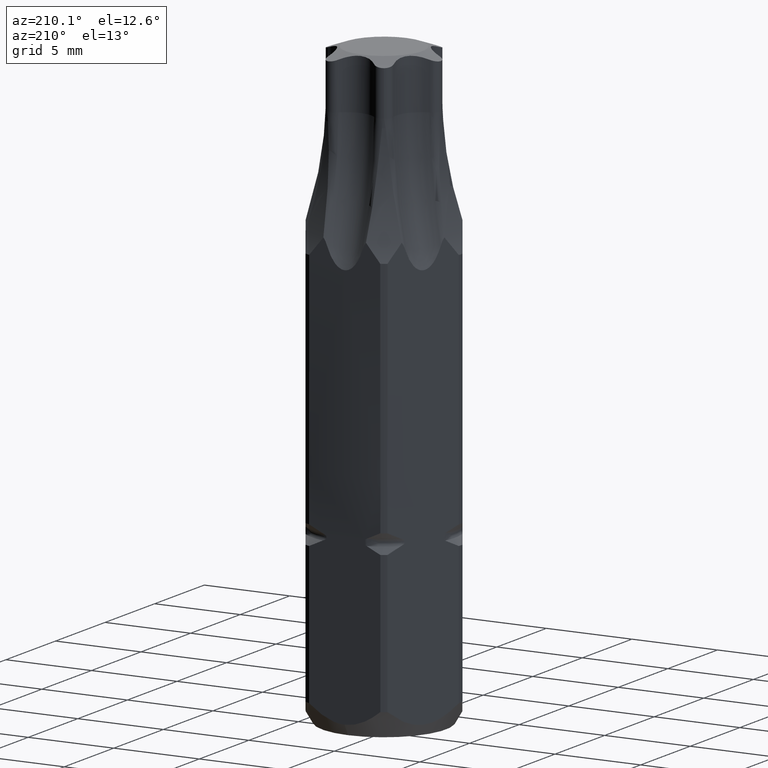
[diagram: clean part render]
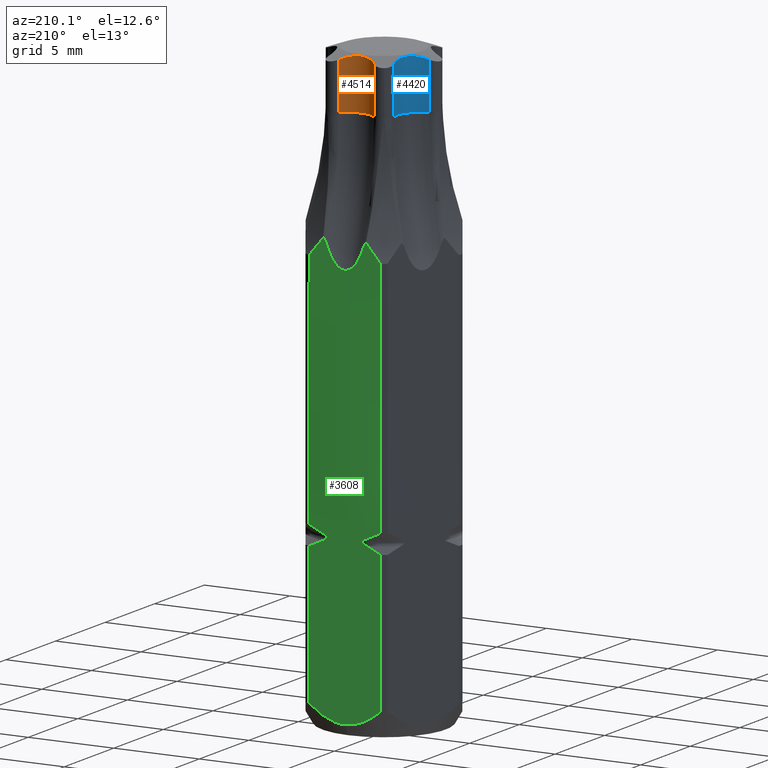
[diagram: same view with three faces highlighted in distinct colors, each labeled with its STEP entity id]
A machine part, auxiliary view with three faces highlighted in distinct colors.
Their STEP definitions:

[orange] entity #4514 — the highlighted cylindrical surface (edge-blend (fillet) strip) has radius 1.47 mm, axis along (0, 0, -1).
#2431=DIRECTION('',(0.E0,0.E0,-1.E0));
#2432=VECTOR('',#2431,2.730601962634E0);
#2433=CARTESIAN_POINT('',(-1.042838034832E0,2.798955197345E0,3.473060196263E1));
#2434=LINE('',#2433,#2432);
#2474=CARTESIAN_POINT('',(0.E0,3.835E0,3.2E1));
#2475=DIRECTION('',(0.E0,0.E0,-1.E0));
#2476=DIRECTION('',(7.094136291372E-1,-7.047923827585E-1,0.E0));
#2477=AXIS2_PLACEMENT_3D('',#2474,#2475,#2476);
#2526=CARTESIAN_POINT('',(1.042838034832E0,2.798955197345E0,3.473060196263E1));
#2538=CARTESIAN_POINT('',(1.042838034832E0,2.798955197345E0,3.473060196263E1));
#2539=CARTESIAN_POINT('',(9.699002866306E-1,2.725539204326E0,3.476491025058E1));
#2540=CARTESIAN_POINT('',(8.115790935390E-1,2.596961076582E0,3.482827344016E1));
#2541=CARTESIAN_POINT('',(5.461495440323E-1,2.459945298125E0,3.490200143894E1));
#2542=CARTESIAN_POINT('',(2.737208158012E-1,2.381788600741E0,3.494696765808E1));
#2543=CARTESIAN_POINT('',(9.017319638952E-2,2.365E0,3.495696051980E1));
#2544=CARTESIAN_POINT('',(0.E0,2.365E0,3.495696051980E1));
#2549=CARTESIAN_POINT('',(0.E0,2.365E0,3.495696051980E1));
#2550=CARTESIAN_POINT('',(-9.091247753343E-2,2.365E0,3.495696051980E1));
#2551=CARTESIAN_POINT('',(-2.753400528239E-1,2.382070805188E0,
3.494679864733E1));
#2552=CARTESIAN_POINT('',(-5.469459418545E-1,2.460393553623E0,
3.490176003595E1));
#2553=CARTESIAN_POINT('',(-8.106914107492E-1,2.596450595448E0,
3.482854456145E1));
#2554=CARTESIAN_POINT('',(-9.695608488727E-1,2.725197540912E0,
3.476506991452E1));
#2555=CARTESIAN_POINT('',(-1.042838034832E0,2.798955197345E0,3.473060196263E1));
#2560=DIRECTION('',(0.E0,0.E0,-1.E0));
#2561=VECTOR('',#2560,2.730601962634E0);
#2562=CARTESIAN_POINT('',(1.042838034832E0,2.798955197345E0,3.473060196263E1));
#2563=LINE('',#2562,#2561);
#2847=CARTESIAN_POINT('',(1.042838034832E0,2.798955197345E0,3.2E1));
#2848=CARTESIAN_POINT('',(-1.042838034832E0,2.798955197345E0,3.2E1));
#2849=VERTEX_POINT('',#2847);
#2850=VERTEX_POINT('',#2848);
#2919=VERTEX_POINT('',#2526);
#2921=VERTEX_POINT('',#2544);
#2922=VERTEX_POINT('',#2555);
#4502=CARTESIAN_POINT('',(0.E0,3.835E0,3.5E1));
#4503=DIRECTION('',(0.E0,0.E0,-1.E0));
#4504=DIRECTION('',(0.E0,1.E0,0.E0));
#4505=AXIS2_PLACEMENT_3D('',#4502,#4503,#4504);
#4506=CYLINDRICAL_SURFACE('',#4505,1.47E0);
#4507=ORIENTED_EDGE('',*,*,#4128,.T.);
#4508=ORIENTED_EDGE('',*,*,#4195,.T.);
#4509=ORIENTED_EDGE('',*,*,#4442,.T.);
#4510=ORIENTED_EDGE('',*,*,#4468,.F.);
#4511=ORIENTED_EDGE('',*,*,#4495,.F.);
#4512=EDGE_LOOP('',(#4507,#4508,#4509,#4510,#4511));
#4513=FACE_OUTER_BOUND('',#4512,.F.);
#4514=ADVANCED_FACE('',(#4513),#4506,.F.);
#2478=CIRCLE('',#2477,1.47E0);
#2545=B_SPLINE_CURVE_WITH_KNOTS('',3,(#2538,#2539,#2540,#2541,#2542,#2543,
#2544),.UNSPECIFIED.,.F.,.F.,(4,1,1,1,4),(0.E0,2.5E-1,5.E-1,7.5E-1,1.E0),
.UNSPECIFIED.);
#2556=B_SPLINE_CURVE_WITH_KNOTS('',3,(#2549,#2550,#2551,#2552,#2553,#2554,
#2555),.UNSPECIFIED.,.F.,.F.,(4,1,1,1,4),(0.E0,2.5E-1,5.E-1,7.5E-1,1.E0),
.UNSPECIFIED.);
#4128=EDGE_CURVE('',#2919,#2921,#2545,.T.);
#4195=EDGE_CURVE('',#2921,#2922,#2556,.T.);
#4442=EDGE_CURVE('',#2922,#2850,#2434,.T.);
#4468=EDGE_CURVE('',#2849,#2850,#2478,.T.);
#4495=EDGE_CURVE('',#2919,#2849,#2563,.T.);

[blue] entity #4420 — the highlighted cylindrical surface (edge-blend (fillet) strip) has radius 1.47 mm, axis along (0, 0, -1).
#1715=CARTESIAN_POINT('',(-3.321207423513E0,1.9175E0,3.2E1));
#1716=DIRECTION('',(0.E0,0.E0,-1.E0));
#1717=DIRECTION('',(9.650749224312E-1,2.619740332445E-1,0.E0));
#1718=AXIS2_PLACEMENT_3D('',#1715,#1716,#1717);
#2379=DIRECTION('',(0.E0,0.E0,-1.E0));
#2380=VECTOR('',#2379,2.730601962634E0);
#2381=CARTESIAN_POINT('',(-2.945385322371E0,4.963533684756E-1,
3.473060196263E1));
#2382=LINE('',#2381,#2380);
#2386=CARTESIAN_POINT('',(-1.902547287539E0,2.302601828869E0,3.473060196263E1));
#2387=CARTESIAN_POINT('',(-1.871497430800E0,2.188218591291E0,3.476989442548E1));
#2388=CARTESIAN_POINT('',(-1.838375222690E0,1.957171090817E0,3.484160660030E1));
#2389=CARTESIAN_POINT('',(-1.869136733366E0,1.619301133311E0,3.491971703679E1));
#2390=CARTESIAN_POINT('',(-1.969690484980E0,1.310705672692E0,3.495921769548E1));
#2391=CARTESIAN_POINT('',(-2.130238089734E0,1.036733641687E0,3.495798141464E1));
#2392=CARTESIAN_POINT('',(-2.345860517826E0,8.020009046130E-1,
3.491734600614E1));
#2393=CARTESIAN_POINT('',(-2.617086255884E0,6.124630018908E-1,
3.484059962333E1));
#2394=CARTESIAN_POINT('',(-2.831573701809E0,5.264508414776E-1,
3.476962966182E1));
#2395=CARTESIAN_POINT('',(-2.945385322371E0,4.963533684756E-1,
3.473060196263E1));
#2400=DIRECTION('',(0.E0,0.E0,-1.E0));
#2401=VECTOR('',#2400,2.730601962634E0);
#2402=CARTESIAN_POINT('',(-1.902547287539E0,2.302601828869E0,3.473060196263E1));
#2403=LINE('',#2402,#2401);
#2855=CARTESIAN_POINT('',(-1.902547287539E0,2.302601828869E0,3.2E1));
#2856=CARTESIAN_POINT('',(-2.945385322371E0,4.963533684756E-1,3.2E1));
#2857=VERTEX_POINT('',#2855);
#2858=VERTEX_POINT('',#2856);
#2944=VERTEX_POINT('',#2386);
#2945=VERTEX_POINT('',#2395);
#4408=CARTESIAN_POINT('',(-3.321207423513E0,1.9175E0,3.5E1));
#4409=DIRECTION('',(0.E0,0.E0,-1.E0));
#4410=DIRECTION('',(-8.660254037844E-1,5.E-1,0.E0));
#4411=AXIS2_PLACEMENT_3D('',#4408,#4409,#4410);
#4412=CYLINDRICAL_SURFACE('',#4411,1.47E0);
#4413=ORIENTED_EDGE('',*,*,#4188,.T.);
#4414=ORIENTED_EDGE('',*,*,#4403,.T.);
#4415=ORIENTED_EDGE('',*,*,#3985,.F.);
#4417=ORIENTED_EDGE('',*,*,#4416,.F.);
#4418=EDGE_LOOP('',(#4413,#4414,#4415,#4417));
#4419=FACE_OUTER_BOUND('',#4418,.F.);
#4420=ADVANCED_FACE('',(#4419),#4412,.F.);
#1719=CIRCLE('',#1718,1.47E0);
#2396=B_SPLINE_CURVE_WITH_KNOTS('',3,(#2386,#2387,#2388,#2389,#2390,#2391,#2392,
#2393,#2394,#2395),.UNSPECIFIED.,.F.,.F.,(4,1,1,1,1,1,1,4),(0.E0,
1.428571428571E-1,2.857142857143E-1,4.285714285714E-1,5.714285714286E-1,
7.142857142857E-1,8.571428571429E-1,1.E0),.UNSPECIFIED.);
#3985=EDGE_CURVE('',#2857,#2858,#1719,.T.);
#4188=EDGE_CURVE('',#2944,#2945,#2396,.T.);
#4403=EDGE_CURVE('',#2945,#2858,#2382,.T.);
#4416=EDGE_CURVE('',#2944,#2857,#2403,.T.);

[green] entity #3608 — the highlighted planar face has unit normal (0, -1, 0).
#106=CARTESIAN_POINT('',(0.E0,3.965E0,6.079938341020E-1));
#107=CARTESIAN_POINT('',(-1.260709872192E-1,3.965E0,6.079938341020E-1));
#108=CARTESIAN_POINT('',(-3.820886774728E-1,3.965E0,6.290926462320E-1));
#109=CARTESIAN_POINT('',(-7.723101852079E-1,3.965E0,7.260594150333E-1));
#110=CARTESIAN_POINT('',(-1.185045461804E0,3.965E0,8.964966185216E-1));
#111=CARTESIAN_POINT('',(-1.623404060543E0,3.965E0,1.149672226966E0));
#112=CARTESIAN_POINT('',(-1.929078592573E0,3.965E0,1.373906643791E0));
#113=CARTESIAN_POINT('',(-2.085467573471E0,3.965E0,1.5E0));
#155=DIRECTION('',(0.E0,0.E0,-1.E0));
#156=VECTOR('',#155,8.137942564534E0);
#157=CARTESIAN_POINT('',(2.085467573471E0,3.965E0,9.637942564534E0));
#158=LINE('',#157,#156);
#273=DIRECTION('',(0.E0,0.E0,-1.E0));
#274=VECTOR('',#273,8.137942564534E0);
#275=CARTESIAN_POINT('',(-2.085467573471E0,3.965E0,9.637942564534E0));
#276=LINE('',#275,#274);
#287=DIRECTION('',(0.E0,0.E0,-1.E0));
#288=VECTOR('',#287,2.737942564534E0);
#289=CARTESIAN_POINT('',(2.085467573471E0,3.965E0,1.35E1));
#290=LINE('',#289,#288);
#370=DIRECTION('',(0.E0,0.E0,-1.E0));
#371=VECTOR('',#370,2.737942564534E0);
#372=CARTESIAN_POINT('',(-2.085467573471E0,3.965E0,1.35E1));
#373=LINE('',#372,#371);
#432=CARTESIAN_POINT('',(2.085467573471E0,3.965E0,1.076205743547E1));
#433=CARTESIAN_POINT('',(1.992352772305E0,3.965E0,1.071040026457E1));
#434=CARTESIAN_POINT('',(1.809358796283E0,3.965E0,1.061432863635E1));
#435=CARTESIAN_POINT('',(1.546061241775E0,3.965E0,1.049210076246E1));
#436=CARTESIAN_POINT('',(1.375665671985E0,3.965E0,1.042373220854E1));
#437=CARTESIAN_POINT('',(1.291987553408E0,3.965E0,1.039283628291E1));
#536=CARTESIAN_POINT('',(-1.291987553408E0,3.965E0,1.039283628291E1));
#537=CARTESIAN_POINT('',(-1.375922526726E0,3.965E0,1.042382704534E1));
#538=CARTESIAN_POINT('',(-1.546647700071E0,3.965E0,1.049235212941E1));
#539=CARTESIAN_POINT('',(-1.809811484921E0,3.965E0,1.061455913620E1));
#540=CARTESIAN_POINT('',(-1.992542565972E0,3.965E0,1.071050555614E1));
#541=CARTESIAN_POINT('',(-2.085467573471E0,3.965E0,1.076205743547E1));
#582=CARTESIAN_POINT('',(-2.085467573471E0,3.965E0,1.35E1));
#583=CARTESIAN_POINT('',(-2.084222359657E0,3.965E0,1.35E1));
#584=CARTESIAN_POINT('',(-2.081913349986E0,3.966539174749E0,1.35E1));
#585=CARTESIAN_POINT('',(-2.080668136172E0,3.966539174749E0,1.35E1));
#590=CARTESIAN_POINT('',(2.080668136172E0,3.966539174749E0,1.35E1));
#591=CARTESIAN_POINT('',(2.081913349986E0,3.966539174749E0,1.35E1));
#592=CARTESIAN_POINT('',(2.084222359657E0,3.965E0,1.35E1));
#593=CARTESIAN_POINT('',(2.085467573471E0,3.965E0,1.35E1));
#598=DIRECTION('',(1.905691332372E-4,4.570250170718E-5,-9.999999807973E-1));
#599=VECTOR('',#598,1.122604300291E1);
#600=CARTESIAN_POINT('',(2.078528798887E0,3.966026116499E0,2.472604278734E1));
#601=LINE('',#600,#599);
#605=DIRECTION('',(-1.905691332370E-4,4.570250170726E-5,-9.999999807973E-1));
#606=VECTOR('',#605,1.122604300291E1);
#607=CARTESIAN_POINT('',(-2.078528798887E0,3.966026116499E0,2.472604278734E1));
#608=LINE('',#607,#606);
#641=CARTESIAN_POINT('',(1.291987553409E0,3.965E0,1.000716371709E1));
#642=CARTESIAN_POINT('',(1.270703765983E0,3.965E0,1.001502219103E1));
#643=CARTESIAN_POINT('',(1.230102267976E0,3.965E0,1.003127179260E1));
#644=CARTESIAN_POINT('',(1.174159456944E0,3.965E0,1.005803482E1));
#645=CARTESIAN_POINT('',(1.126499088333E0,3.965E0,1.008619041089E1));
#646=CARTESIAN_POINT('',(1.088238543217E0,3.965E0,1.011547961233E1));
#647=CARTESIAN_POINT('',(1.059492941074E0,3.965E0,1.014689628045E1));
#648=CARTESIAN_POINT('',(1.042361262253E0,3.965E0,1.018245968585E1));
#649=CARTESIAN_POINT('',(1.043151648806E0,3.965E0,1.022094403525E1));
#650=CARTESIAN_POINT('',(1.062189385120E0,3.965E0,1.025669900540E1));
#651=CARTESIAN_POINT('',(1.090300635172E0,3.965E0,1.028602037175E1));
#652=CARTESIAN_POINT('',(1.123848045744E0,3.965E0,1.031167911991E1));
#653=CARTESIAN_POINT('',(1.161995077619E0,3.965E0,1.033499311787E1));
#654=CARTESIAN_POINT('',(1.203342991689E0,3.965E0,1.035620960392E1));
#655=CARTESIAN_POINT('',(1.246724926615E0,3.965E0,1.037546677669E1));
#656=CARTESIAN_POINT('',(1.276720867469E0,3.965E0,1.038719946409E1));
#657=CARTESIAN_POINT('',(1.291987553408E0,3.965E0,1.039283628291E1));
#831=CARTESIAN_POINT('',(-1.291987553408E0,3.965E0,1.039283628291E1));
#832=CARTESIAN_POINT('',(-1.270755302097E0,3.965E0,1.038499683732E1));
#833=CARTESIAN_POINT('',(-1.230201485109E0,3.965E0,1.036877119922E1));
#834=CARTESIAN_POINT('',(-1.174164686405E0,3.965E0,1.034197413220E1));
#835=CARTESIAN_POINT('',(-1.126285545724E0,3.965E0,1.031368125495E1));
#836=CARTESIAN_POINT('',(-1.087859222292E0,3.965E0,1.028420292203E1));
#837=CARTESIAN_POINT('',(-1.059083229647E0,3.965E0,1.025255724074E1));
#838=CARTESIAN_POINT('',(-1.042199883283E0,3.965E0,1.021685106524E1));
#839=CARTESIAN_POINT('',(-1.043359604604E0,3.965E0,1.017849277354E1));
#840=CARTESIAN_POINT('',(-1.062378267424E0,3.965E0,1.014308112325E1));
#841=CARTESIAN_POINT('',(-1.090549614845E0,3.965E0,1.011376151175E1));
#842=CARTESIAN_POINT('',(-1.123956129584E0,3.965E0,1.008825940339E1));
#843=CARTESIAN_POINT('',(-1.161964723909E0,3.965E0,1.006502638852E1));
#844=CARTESIAN_POINT('',(-1.203231195133E0,3.965E0,1.004384394709E1));
#845=CARTESIAN_POINT('',(-1.246655698397E0,3.965E0,1.002456071832E1));
#846=CARTESIAN_POINT('',(-1.276691698990E0,3.965E0,1.001281130560E1));
#847=CARTESIAN_POINT('',(-1.291987553408E0,3.965E0,1.000716371709E1));
#928=CARTESIAN_POINT('',(2.085467573471E0,3.965E0,9.637942564534E0));
#929=CARTESIAN_POINT('',(1.992352772305E0,3.965E0,9.689599735429E0));
#930=CARTESIAN_POINT('',(1.809358796283E0,3.965E0,9.785671363654E0));
#931=CARTESIAN_POINT('',(1.546061241775E0,3.965E0,9.907899237536E0));
#932=CARTESIAN_POINT('',(1.375665671985E0,3.965E0,9.976267791457E0));
#933=CARTESIAN_POINT('',(1.291987553409E0,3.965E0,1.000716371709E1));
#1072=CARTESIAN_POINT('',(-1.291987553408E0,3.965E0,1.000716371709E1));
#1073=CARTESIAN_POINT('',(-1.375922526726E0,3.965E0,9.976172954657E0));
#1074=CARTESIAN_POINT('',(-1.546647700071E0,3.965E0,9.907647870588E0));
#1075=CARTESIAN_POINT('',(-1.809811484921E0,3.965E0,9.785440863796E0));
#1076=CARTESIAN_POINT('',(-1.992542565972E0,3.965E0,9.689494443856E0));
#1077=CARTESIAN_POINT('',(-2.085467573471E0,3.965E0,9.637942564534E0));
#1200=CARTESIAN_POINT('',(2.085467573471E0,3.965E0,1.5E0));
#1201=CARTESIAN_POINT('',(1.928771266591E0,3.965E0,1.373658852904E0));
#1202=CARTESIAN_POINT('',(1.622536742897E0,3.965E0,1.149062766311E0));
#1203=CARTESIAN_POINT('',(1.183535940988E0,3.965E0,8.957108940850E-1));
#1204=CARTESIAN_POINT('',(7.703784815346E-1,3.965E0,7.254166590556E-1));
#1205=CARTESIAN_POINT('',(3.806696657510E-1,3.965E0,6.289082844754E-1));
#1206=CARTESIAN_POINT('',(1.255065813968E-1,3.965E0,6.079938341020E-1));
#1207=CARTESIAN_POINT('',(0.E0,3.965E0,6.079938341020E-1));
#1329=CARTESIAN_POINT('',(-1.244790292374E0,3.965E0,2.572307797896E1));
#1330=CARTESIAN_POINT('',(-1.305947891889E0,3.965E0,2.566070717391E1));
#1331=CARTESIAN_POINT('',(-1.424985382157E0,3.965009819297E0,2.553320155829E1));
#1332=CARTESIAN_POINT('',(-1.596263642734E0,3.964965632462E0,2.533588925234E1));
#1333=CARTESIAN_POINT('',(-1.761689960630E0,3.965127650856E0,2.513468734517E1));
#1334=CARTESIAN_POINT('',(-1.921544894075E0,3.964523764113E0,2.493146967690E1));
#1335=CARTESIAN_POINT('',(-2.026786669953E0,3.966026116499E0,2.479464708104E1));
#1336=CARTESIAN_POINT('',(-2.078528798887E0,3.966026116499E0,2.472604278734E1));
#1353=CARTESIAN_POINT('',(-1.244790292374E0,3.965E0,2.572307797896E1));
#1438=CARTESIAN_POINT('',(1.244790292374E0,3.965E0,2.572307797896E1));
#1455=CARTESIAN_POINT('',(2.078528798887E0,3.966026116499E0,2.472604278734E1));
#1456=CARTESIAN_POINT('',(2.013644694778E0,3.966026116499E0,2.481207187478E1));
#1457=CARTESIAN_POINT('',(1.881669297161E0,3.964523588768E0,2.498339394084E1));
#1458=CARTESIAN_POINT('',(1.679418610494E0,3.965128264562E0,2.523689314212E1));
#1459=CARTESIAN_POINT('',(1.468516142997E0,3.964963352982E0,2.548543644543E1));
#1460=CARTESIAN_POINT('',(1.321060965498E0,3.965E0,2.564529429676E1));
#1461=CARTESIAN_POINT('',(1.244790292374E0,3.965E0,2.572307797896E1));
#2454=CARTESIAN_POINT('',(-1.042838034832E0,3.965E0,2.534642132236E1));
#2455=CARTESIAN_POINT('',(-1.052741757257E0,3.965E0,2.537573596018E1));
#2456=CARTESIAN_POINT('',(-1.073675384368E0,3.965E0,2.543333839538E1));
#2457=CARTESIAN_POINT('',(-1.110262406951E0,3.965E0,2.551849844750E1));
#2458=CARTESIAN_POINT('',(-1.150125528886E0,3.965E0,2.559572359642E1));
#2459=CARTESIAN_POINT('',(-1.195128361623E0,3.965E0,2.566628988380E1));
#2460=CARTESIAN_POINT('',(-1.227566909723E0,3.965E0,2.570547089841E1));
#2461=CARTESIAN_POINT('',(-1.244790292374E0,3.965E0,2.572307797896E1));
#2482=CARTESIAN_POINT('',(1.042838034832E0,3.965E0,2.534642132236E1));
#2483=CARTESIAN_POINT('',(1.014640981159E0,3.965E0,2.526295912700E1));
#2484=CARTESIAN_POINT('',(9.563860672517E-1,3.965E0,2.510719409596E1));
#2485=CARTESIAN_POINT('',(8.676408062457E-1,3.965E0,2.491023792004E1));
#2486=CARTESIAN_POINT('',(7.741812623960E-1,3.965E0,2.473717279902E1));
#2487=CARTESIAN_POINT('',(6.734243366241E-1,3.965E0,2.458295683068E1));
#2488=CARTESIAN_POINT('',(5.584567120569E-1,3.965E0,2.444109207452E1));
#2489=CARTESIAN_POINT('',(4.228448827874E-1,3.965E0,2.431406188670E1));
#2490=CARTESIAN_POINT('',(2.637954834166E-1,3.965E0,2.421372781965E1));
#2491=CARTESIAN_POINT('',(8.389375534833E-2,3.965E0,2.415765901693E1));
#2492=CARTESIAN_POINT('',(-1.036963481104E-1,3.965E0,2.416101098783E1));
#2493=CARTESIAN_POINT('',(-2.811598580128E-1,3.965E0,2.422237120606E1));
#2494=CARTESIAN_POINT('',(-4.373171460673E-1,3.965E0,2.432573812554E1));
#2495=CARTESIAN_POINT('',(-5.703755217663E-1,3.965E0,2.445433751212E1));
#2496=CARTESIAN_POINT('',(-6.823702065352E-1,3.965E0,2.459561440798E1));
#2497=CARTESIAN_POINT('',(-7.806042903752E-1,3.965E0,2.474828168580E1));
#2498=CARTESIAN_POINT('',(-8.716471901121E-1,3.965E0,2.491865492701E1));
#2499=CARTESIAN_POINT('',(-9.582234307901E-1,3.965E0,2.511196314385E1));
#2500=CARTESIAN_POINT('',(-1.015214988246E0,3.965E0,2.526465816592E1));
#2501=CARTESIAN_POINT('',(-1.042838034832E0,3.965E0,2.534642132236E1));
#2506=CARTESIAN_POINT('',(1.244790292374E0,3.965E0,2.572307797896E1));
#2507=CARTESIAN_POINT('',(1.227552706118E0,3.965E0,2.570545637838E1));
#2508=CARTESIAN_POINT('',(1.195090616487E0,3.965E0,2.566624484032E1));
#2509=CARTESIAN_POINT('',(1.150027339377E0,3.965E0,2.559555599319E1));
#2510=CARTESIAN_POINT('',(1.110197134621E0,3.965E0,2.551834918941E1));
#2511=CARTESIAN_POINT('',(1.073696669063E0,3.965E0,2.543338598299E1));
#2512=CARTESIAN_POINT('',(1.052750980888E0,3.965E0,2.537576326177E1));
#2513=CARTESIAN_POINT('',(1.042838034832E0,3.965E0,2.534642132236E1));
#2959=CARTESIAN_POINT('',(2.085467573471E0,3.965E0,9.637942564534E0));
#2960=CARTESIAN_POINT('',(2.085467573471E0,3.965E0,1.5E0));
#2961=VERTEX_POINT('',#2959);
#2962=VERTEX_POINT('',#2960);
#2963=CARTESIAN_POINT('',(-2.085467573471E0,3.965E0,9.637942564534E0));
#2964=CARTESIAN_POINT('',(-2.085467573471E0,3.965E0,1.5E0));
#2965=VERTEX_POINT('',#2963);
#2966=VERTEX_POINT('',#2964);
#2967=VERTEX_POINT('',#106);
#3009=VERTEX_POINT('',#536);
#3010=VERTEX_POINT('',#541);
#3011=VERTEX_POINT('',#1072);
#3012=VERTEX_POINT('',#432);
#3013=VERTEX_POINT('',#437);
#3014=VERTEX_POINT('',#933);
#3045=CARTESIAN_POINT('',(1.042838034832E0,3.965E0,2.534642132236E1));
#3046=VERTEX_POINT('',#3045);
#3047=CARTESIAN_POINT('',(-1.042838034832E0,3.965E0,2.534642132236E1));
#3048=VERTEX_POINT('',#3047);
#3049=VERTEX_POINT('',#1438);
#3050=VERTEX_POINT('',#1353);
#3082=CARTESIAN_POINT('',(-2.077991028174E0,3.965E0,2.472604278734E1));
#3084=VERTEX_POINT('',#3082);
#3085=CARTESIAN_POINT('',(2.077991028174E0,3.965E0,2.472604278734E1));
#3087=VERTEX_POINT('',#3085);
#3097=VERTEX_POINT('',#582);
#3098=VERTEX_POINT('',#585);
#3099=VERTEX_POINT('',#590);
#3100=VERTEX_POINT('',#593);
#3570=CARTESIAN_POINT('',(-5.94E0,3.965E0,1.35E1));
#3571=DIRECTION('',(0.E0,-1.E0,0.E0));
#3572=DIRECTION('',(0.E0,0.E0,-1.E0));
#3573=AXIS2_PLACEMENT_3D('',#3570,#3571,#3572);
#3574=PLANE('',#3573);
#3575=ORIENTED_EDGE('',*,*,#3430,.F.);
#3576=ORIENTED_EDGE('',*,*,#3428,.T.);
#3577=ORIENTED_EDGE('',*,*,#3550,.F.);
#3579=ORIENTED_EDGE('',*,*,#3578,.T.);
#3581=ORIENTED_EDGE('',*,*,#3580,.T.);
#3582=ORIENTED_EDGE('',*,*,#3299,.T.);
#3583=ORIENTED_EDGE('',*,*,#3161,.F.);
#3585=ORIENTED_EDGE('',*,*,#3584,.F.);
#3586=ORIENTED_EDGE('',*,*,#3224,.F.);
#3588=ORIENTED_EDGE('',*,*,#3587,.T.);
#3590=ORIENTED_EDGE('',*,*,#3589,.T.);
#3591=ORIENTED_EDGE('',*,*,#3491,.F.);
#3592=ORIENTED_EDGE('',*,*,#3323,.F.);
#3593=ORIENTED_EDGE('',*,*,#3321,.F.);
#3594=ORIENTED_EDGE('',*,*,#3319,.F.);
#3596=ORIENTED_EDGE('',*,*,#3595,.T.);
#3598=ORIENTED_EDGE('',*,*,#3597,.T.);
#3600=ORIENTED_EDGE('',*,*,#3599,.T.);
#3602=ORIENTED_EDGE('',*,*,#3601,.T.);
#3604=ORIENTED_EDGE('',*,*,#3603,.T.);
#3605=ORIENTED_EDGE('',*,*,#3432,.T.);
#3606=EDGE_LOOP('',(#3575,#3576,#3577,#3579,#3581,#3582,#3583,#3585,#3586,#3588,
#3590,#3591,#3592,#3593,#3594,#3596,#3598,#3600,#3602,#3604,#3605));
#3607=FACE_OUTER_BOUND('',#3606,.F.);
#3608=ADVANCED_FACE('',(#3607),#3574,.F.);
#114=B_SPLINE_CURVE_WITH_KNOTS('',3,(#106,#107,#108,#109,#110,#111,#112,#113),
.UNSPECIFIED.,.F.,.F.,(4,1,1,1,1,4),(0.E0,2.E-1,4.E-1,6.E-1,8.E-1,1.E0),
.UNSPECIFIED.);
#438=B_SPLINE_CURVE_WITH_KNOTS('',3,(#432,#433,#434,#435,#436,#437),
.UNSPECIFIED.,.F.,.F.,(4,1,1,4),(0.E0,3.333333333333E-1,6.666666666667E-1,1.E0),
.UNSPECIFIED.);
#542=B_SPLINE_CURVE_WITH_KNOTS('',3,(#536,#537,#538,#539,#540,#541),
.UNSPECIFIED.,.F.,.F.,(4,1,1,4),(0.E0,3.333333333333E-1,6.666666666667E-1,1.E0),
.UNSPECIFIED.);
#586=B_SPLINE_CURVE_WITH_KNOTS('',3,(#582,#583,#584,#585),.UNSPECIFIED.,.F.,.F.,
(4,4),(0.E0,1.E0),.UNSPECIFIED.);
#594=B_SPLINE_CURVE_WITH_KNOTS('',3,(#590,#591,#592,#593),.UNSPECIFIED.,.F.,.F.,
(4,4),(0.E0,1.E0),.UNSPECIFIED.);
#658=B_SPLINE_CURVE_WITH_KNOTS('',3,(#641,#642,#643,#644,#645,#646,#647,#648,
#649,#650,#651,#652,#653,#654,#655,#656,#657),.UNSPECIFIED.,.F.,.F.,(4,1,1,1,1,
1,1,1,1,1,1,1,1,1,4),(0.E0,7.142857142857E-2,1.428571428571E-1,
2.142857142857E-1,2.857142857143E-1,3.571428571429E-1,4.285714285714E-1,5.E-1,
5.714285714286E-1,6.428571428571E-1,7.142857142857E-1,7.857142857143E-1,
8.571428571429E-1,9.285714285714E-1,1.E0),.UNSPECIFIED.);
#848=B_SPLINE_CURVE_WITH_KNOTS('',3,(#831,#832,#833,#834,#835,#836,#837,#838,
#839,#840,#841,#842,#843,#844,#845,#846,#847),.UNSPECIFIED.,.F.,.F.,(4,1,1,1,1,
1,1,1,1,1,1,1,1,1,4),(0.E0,7.142857142857E-2,1.428571428571E-1,
2.142857142857E-1,2.857142857143E-1,3.571428571429E-1,4.285714285714E-1,5.E-1,
5.714285714286E-1,6.428571428571E-1,7.142857142857E-1,7.857142857143E-1,
8.571428571429E-1,9.285714285714E-1,1.E0),.UNSPECIFIED.);
#934=B_SPLINE_CURVE_WITH_KNOTS('',3,(#928,#929,#930,#931,#932,#933),
.UNSPECIFIED.,.F.,.F.,(4,1,1,4),(0.E0,3.333333333333E-1,6.666666666667E-1,1.E0),
.UNSPECIFIED.);
#1078=B_SPLINE_CURVE_WITH_KNOTS('',3,(#1072,#1073,#1074,#1075,#1076,#1077),
.UNSPECIFIED.,.F.,.F.,(4,1,1,4),(0.E0,3.333333333333E-1,6.666666666667E-1,1.E0),
.UNSPECIFIED.);
#1208=B_SPLINE_CURVE_WITH_KNOTS('',3,(#1200,#1201,#1202,#1203,#1204,#1205,#1206,
#1207),.UNSPECIFIED.,.F.,.F.,(4,1,1,1,1,4),(0.E0,2.E-1,4.E-1,6.E-1,8.E-1,1.E0),
.UNSPECIFIED.);
#1337=B_SPLINE_CURVE_WITH_KNOTS('',3,(#1329,#1330,#1331,#1332,#1333,#1334,#1335,
#1336),.UNSPECIFIED.,.F.,.F.,(4,1,1,1,1,4),(0.E0,2.E-1,4.E-1,6.E-1,8.E-1,1.E0),
.UNSPECIFIED.);
#1462=B_SPLINE_CURVE_WITH_KNOTS('',3,(#1455,#1456,#1457,#1458,#1459,#1460,
#1461),.UNSPECIFIED.,.F.,.F.,(4,1,1,1,4),(0.E0,2.5E-1,5.E-1,7.5E-1,1.E0),
.UNSPECIFIED.);
#2462=B_SPLINE_CURVE_WITH_KNOTS('',3,(#2454,#2455,#2456,#2457,#2458,#2459,#2460,
#2461),.UNSPECIFIED.,.F.,.F.,(4,1,1,1,1,4),(0.E0,2.E-1,4.E-1,6.E-1,8.E-1,1.E0),
.UNSPECIFIED.);
#2502=B_SPLINE_CURVE_WITH_KNOTS('',3,(#2482,#2483,#2484,#2485,#2486,#2487,#2488,
#2489,#2490,#2491,#2492,#2493,#2494,#2495,#2496,#2497,#2498,#2499,#2500,#2501),
.UNSPECIFIED.,.F.,.F.,(4,1,1,1,1,1,1,1,1,1,1,1,1,1,1,1,1,4),(0.E0,
5.882352941176E-2,1.176470588235E-1,1.764705882353E-1,2.352941176471E-1,
2.941176470588E-1,3.529411764706E-1,4.117647058824E-1,4.705882352941E-1,
5.294117647059E-1,5.882352941176E-1,6.470588235294E-1,7.058823529412E-1,
7.647058823529E-1,8.235294117647E-1,8.823529411765E-1,9.411764705882E-1,1.E0),
.UNSPECIFIED.);
#2514=B_SPLINE_CURVE_WITH_KNOTS('',3,(#2506,#2507,#2508,#2509,#2510,#2511,#2512,
#2513),.UNSPECIFIED.,.F.,.F.,(4,1,1,1,1,4),(0.E0,2.E-1,4.E-1,6.E-1,8.E-1,1.E0),
.UNSPECIFIED.);
#3161=EDGE_CURVE('',#2967,#2966,#114,.T.);
#3224=EDGE_CURVE('',#2961,#2962,#158,.T.);
#3299=EDGE_CURVE('',#2965,#2966,#276,.T.);
#3319=EDGE_CURVE('',#3087,#3099,#601,.T.);
#3321=EDGE_CURVE('',#3099,#3100,#594,.T.);
#3323=EDGE_CURVE('',#3100,#3012,#290,.T.);
#3428=EDGE_CURVE('',#3097,#3010,#373,.T.);
#3430=EDGE_CURVE('',#3097,#3098,#586,.T.);
#3432=EDGE_CURVE('',#3084,#3098,#608,.T.);
#3491=EDGE_CURVE('',#3012,#3013,#438,.T.);
#3550=EDGE_CURVE('',#3009,#3010,#542,.T.);
#3578=EDGE_CURVE('',#3009,#3011,#848,.T.);
#3580=EDGE_CURVE('',#3011,#2965,#1078,.T.);
#3584=EDGE_CURVE('',#2962,#2967,#1208,.T.);
#3587=EDGE_CURVE('',#2961,#3014,#934,.T.);
#3589=EDGE_CURVE('',#3014,#3013,#658,.T.);
#3595=EDGE_CURVE('',#3087,#3049,#1462,.T.);
#3597=EDGE_CURVE('',#3049,#3046,#2514,.T.);
#3599=EDGE_CURVE('',#3046,#3048,#2502,.T.);
#3601=EDGE_CURVE('',#3048,#3050,#2462,.T.);
#3603=EDGE_CURVE('',#3050,#3084,#1337,.T.);